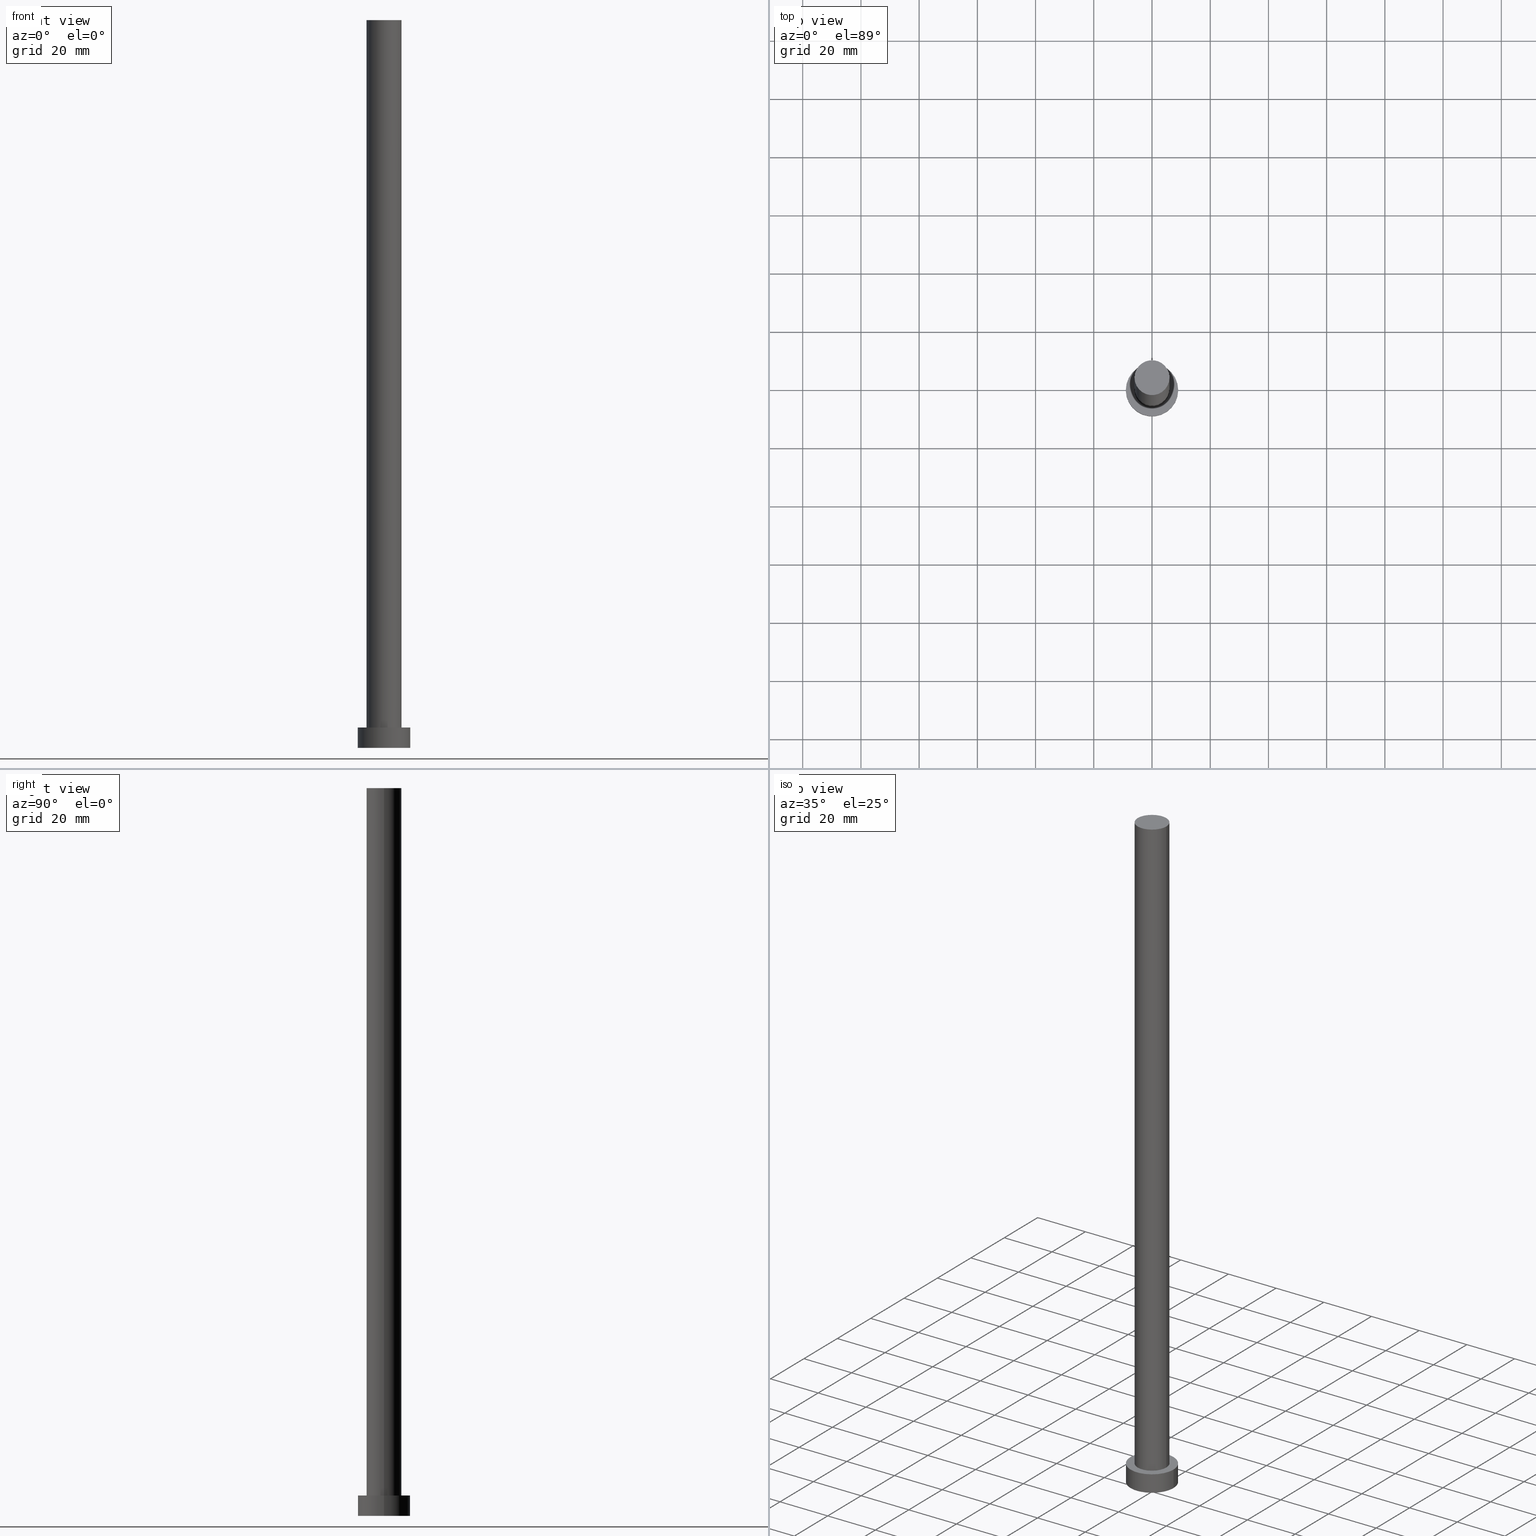
[diagram: canonical four-view strip — front | top / right | iso, engineering-drawing reading convention]
A machine part, canonical four-view strip (front | top / right | iso — engineering-drawing reading convention). The complete STEP part file that produces these views, byte-faithful:
ISO-10303-21;
HEADER;
FILE_DESCRIPTION (( 'STEP AP203' ),
    '1' );
FILE_NAME ('3dfd.STEP',
    '2023-02-13T08:56:39',
    ( '' ),
    ( '' ),
    'SwSTEP 2.0',
    'SolidWorks 2019',
    '' );
FILE_SCHEMA (( 'CONFIG_CONTROL_DESIGN' ));
ENDSEC;

DATA;
#1 = EDGE_LOOP ( 'NONE', ( #206, #64 ) ) ;
#2 = DIRECTION ( 'NONE',  ( 0.000000000000000000, 0.000000000000000000, 1.000000000000000000 ) ) ;
#3 = CARTESIAN_POINT ( 'NONE',  ( 0.000000000000000000, 0.000000000000000000, 250.0000000000000000 ) ) ;
#4 = CARTESIAN_POINT ( 'NONE',  ( -6.000000000000000888, 0.000000000000000000, 250.0000000000000000 ) ) ;
#5 = DIRECTION ( 'NONE',  ( 0.000000000000000000, 0.000000000000000000, 1.000000000000000000 ) ) ;
#6 = SECURITY_CLASSIFICATION ( '', '', #16 ) ;
#7 = DIRECTION ( 'NONE',  ( 0.000000000000000000, 0.000000000000000000, 1.000000000000000000 ) ) ;
#8 = EDGE_CURVE ( 'NONE', #193, #174, #25, .T. ) ;
#9 = EDGE_CURVE ( 'NONE', #174, #193, #170, .T. ) ;
#10 = PERSON_AND_ORGANIZATION ( #247, #176 ) ;
#11 = AXIS2_PLACEMENT_3D ( 'NONE', #117, #2, #190 ) ;
#12 = CIRCLE ( 'NONE', #32, 6.000000000000000888 ) ;
#13 =( NAMED_UNIT ( * ) PLANE_ANGLE_UNIT ( ) SI_UNIT ( $, .RADIAN. ) );
#14 = EDGE_LOOP ( 'NONE', ( #34, #130, #15, #134 ) ) ;
#15 = ORIENTED_EDGE ( 'NONE', *, *, #226, .T. ) ;
#16 = SECURITY_CLASSIFICATION_LEVEL ( 'unclassified' ) ;
#17 = CARTESIAN_POINT ( 'NONE',  ( 0.000000000000000000, 0.000000000000000000, 7.000000000000000000 ) ) ;
#18 = PERSON_AND_ORGANIZATION_ROLE ( 'design_supplier' ) ;
#19 = PRODUCT_DEFINITION ( 'NEZN�M�', '', #105, #204 ) ;
#20 = VERTEX_POINT ( 'NONE', #63 ) ;
#21 = DATE_AND_TIME ( #131, #224 ) ;
#23 = ADVANCED_FACE ( 'NONE', ( #156, #119 ), #97, .T. ) ;
#22 = ORIENTED_EDGE ( 'NONE', *, *, #9, .T. ) ;
#24 = FACE_OUTER_BOUND ( 'NONE', #1, .T. ) ;
#25 = CIRCLE ( 'NONE', #30, 9.000000000000000000 ) ;
#26 = LINE ( 'NONE', #70, #95 ) ;
#27 = DIRECTION ( 'NONE',  ( -0.000000000000000000, -0.000000000000000000, -1.000000000000000000 ) ) ;
#28 = CARTESIAN_POINT ( 'NONE',  ( 0.000000000000000000, 0.000000000000000000, 7.000000000000000000 ) ) ;
#29 = DIRECTION ( 'NONE',  ( -0.000000000000000000, -0.000000000000000000, -1.000000000000000000 ) ) ;
#30 = AXIS2_PLACEMENT_3D ( 'NONE', #136, #234, #209 ) ;
#31 = FACE_OUTER_BOUND ( 'NONE', #101, .T. ) ;
#32 = AXIS2_PLACEMENT_3D ( 'NONE', #87, #179, #49 ) ;
#33 = APPROVAL_ROLE ( '' ) ;
#34 = ORIENTED_EDGE ( 'NONE', *, *, #178, .F. ) ;
#35 = ORIENTED_EDGE ( 'NONE', *, *, #142, .F. ) ;
#36 = ORIENTED_EDGE ( 'NONE', *, *, #226, .F. ) ;
#37 = APPROVAL_DATE_TIME ( #252, #228 ) ;
#38 = ADVANCED_FACE ( 'NONE', ( #24 ), #177, .F. ) ;
#39 = CC_DESIGN_SECURITY_CLASSIFICATION ( #6, ( #105 ) ) ;
#40 = CARTESIAN_POINT ( 'NONE',  ( 0.000000000000000000, 0.000000000000000000, 250.0000000000000000 ) ) ;
#41 = DIRECTION ( 'NONE',  ( 1.000000000000000000, 0.000000000000000000, 0.000000000000000000 ) ) ;
#42 = ORIENTED_EDGE ( 'NONE', *, *, #100, .F. ) ;
#43 = EDGE_CURVE ( 'NONE', #152, #20, #48, .T. ) ;
#44 = AXIS2_PLACEMENT_3D ( 'NONE', #151, #50, #183 ) ;
#45 = CYLINDRICAL_SURFACE ( 'NONE', #122, 6.000000000000000888 ) ;
#46 = DIRECTION ( 'NONE',  ( -1.000000000000000000, 0.000000000000000000, 0.000000000000000000 ) ) ;
#47 = CYLINDRICAL_SURFACE ( 'NONE', #164, 9.000000000000000000 ) ;
#48 = CIRCLE ( 'NONE', #144, 9.000000000000000000 ) ;
#49 = DIRECTION ( 'NONE',  ( 1.000000000000000000, 0.000000000000000000, 0.000000000000000000 ) ) ;
#50 = DIRECTION ( 'NONE',  ( 0.000000000000000000, 0.000000000000000000, 1.000000000000000000 ) ) ;
#51 = CC_DESIGN_PERSON_AND_ORGANIZATION_ASSIGNMENT ( #10, #246, ( #243 ) ) ;
#52 = PERSON_AND_ORGANIZATION ( #247, #176 ) ;
#53 = MECHANICAL_CONTEXT ( 'NONE', #219, 'mechanical' ) ;
#54 = CIRCLE ( 'NONE', #112, 6.000000000000000888 ) ;
#55 = ORIENTED_EDGE ( 'NONE', *, *, #128, .F. ) ;
#56 = AXIS2_PLACEMENT_3D ( 'NONE', #115, #118, #191 ) ;
#57 = EDGE_LOOP ( 'NONE', ( #227, #55 ) ) ;
#58 = ORIENTED_EDGE ( 'NONE', *, *, #178, .T. ) ;
#59 = VERTEX_POINT ( 'NONE', #254 ) ;
#60 = PERSON_AND_ORGANIZATION_ROLE ( 'classification_officer' ) ;
#61 = VECTOR ( 'NONE', #102, 1000.000000000000000 ) ;
#62 = ORIENTED_EDGE ( 'NONE', *, *, #142, .T. ) ;
#63 = CARTESIAN_POINT ( 'NONE',  ( -9.000000000000000000, 0.000000000000000000, 0.000000000000000000 ) ) ;
#64 = ORIENTED_EDGE ( 'NONE', *, *, #43, .F. ) ;
#65 = CYLINDRICAL_SURFACE ( 'NONE', #218, 6.000000000000000888 ) ;
#66 = ADVANCED_FACE ( 'NONE', ( #235 ), #65, .T. ) ;
#67 = CARTESIAN_POINT ( 'NONE',  ( 6.000000000000000888, 7.347880794884120722E-16, 250.0000000000000000 ) ) ;
#68 = EDGE_CURVE ( 'NONE', #20, #152, #81, .T. ) ;
#69 = DIRECTION ( 'NONE',  ( -1.000000000000000000, 0.000000000000000000, 0.000000000000000000 ) ) ;
#70 = CARTESIAN_POINT ( 'NONE',  ( -9.000000000000000000, 0.000000000000000000, 7.000000000000000000 ) ) ;
#71 = CIRCLE ( 'NONE', #195, 6.000000000000000888 ) ;
#72 = APPROVAL_PERSON_ORGANIZATION ( #220, #223, #73 ) ;
#73 = APPROVAL_ROLE ( '' ) ;
#74 = VERTEX_POINT ( 'NONE', #188 ) ;
#75 = APPROVAL_ROLE ( '' ) ;
#76 = EDGE_LOOP ( 'NONE', ( #35, #160, #109, #186 ) ) ;
#77 = LOCAL_TIME ( 9, 56, 39.00000000000000000, #233 ) ;
#78 = CARTESIAN_POINT ( 'NONE',  ( 0.000000000000000000, 0.000000000000000000, 7.000000000000000000 ) ) ;
#79 = COORDINATED_UNIVERSAL_TIME_OFFSET ( 1, 0, .AHEAD. ) ;
#80 = ORIENTED_EDGE ( 'NONE', *, *, #43, .T. ) ;
#81 = CIRCLE ( 'NONE', #56, 9.000000000000000000 ) ;
#82 = CIRCLE ( 'NONE', #146, 6.000000000000000888 ) ;
#83 = DIRECTION ( 'NONE',  ( 0.000000000000000000, 0.000000000000000000, 1.000000000000000000 ) ) ;
#84 = CARTESIAN_POINT ( 'NONE',  ( 9.000000000000000000, 1.102182119232617714E-15, 7.000000000000000000 ) ) ;
#85 = CARTESIAN_POINT ( 'NONE',  ( 0.000000000000000000, 0.000000000000000000, 250.0000000000000000 ) ) ;
#86 = CC_DESIGN_APPROVAL ( #223, ( #19 ) ) ;
#87 = CARTESIAN_POINT ( 'NONE',  ( 0.000000000000000000, 0.000000000000000000, 7.000000000000000000 ) ) ;
#88 = DIRECTION ( 'NONE',  ( -0.000000000000000000, -0.000000000000000000, -1.000000000000000000 ) ) ;
#89 = CALENDAR_DATE ( 2023, 13, 2 ) ;
#90 = EDGE_CURVE ( 'NONE', #74, #192, #71, .T. ) ;
#91 = APPLICATION_PROTOCOL_DEFINITION ( 'international standard', 'config_control_design', 1994, #189 ) ;
#92 = DATE_AND_TIME ( #89, #240 ) ;
#93 = APPROVAL_PERSON_ORGANIZATION ( #232, #121, #75 ) ;
#94 = ORIENTED_EDGE ( 'NONE', *, *, #211, .T. ) ;
#95 = VECTOR ( 'NONE', #29, 1000.000000000000000 ) ;
#96 = AXIS2_PLACEMENT_3D ( 'NONE', #78, #197, #41 ) ;
#97 = PLANE ( 'NONE',  #239 ) ;
#98 = DATE_TIME_ROLE ( 'classification_date' ) ;
#99 = DIRECTION ( 'NONE',  ( -1.000000000000000000, 0.000000000000000000, 0.000000000000000000 ) ) ;
#100 = EDGE_CURVE ( 'NONE', #193, #20, #26, .T. ) ;
#101 = EDGE_LOOP ( 'NONE', ( #159, #62, #80, #42 ) ) ;
#102 = DIRECTION ( 'NONE',  ( -0.000000000000000000, -0.000000000000000000, -1.000000000000000000 ) ) ;
#103 = ORIENTED_EDGE ( 'NONE', *, *, #8, .T. ) ;
#104 = CC_DESIGN_PERSON_AND_ORGANIZATION_ASSIGNMENT ( #207, #60, ( #6 ) ) ;
#105 = PRODUCT_DEFINITION_FORMATION_WITH_SPECIFIED_SOURCE ( 'LIBOVOLN�', '', #243, .NOT_KNOWN. ) ;
#106 = LINE ( 'NONE', #67, #61 ) ;
#107 = DIRECTION ( 'NONE',  ( -0.000000000000000000, -0.000000000000000000, -1.000000000000000000 ) ) ;
#108 = AXIS2_PLACEMENT_3D ( 'NONE', #28, #88, #69 ) ;
#109 = ORIENTED_EDGE ( 'NONE', *, *, #100, .T. ) ;
#110 = CC_DESIGN_PERSON_AND_ORGANIZATION_ASSIGNMENT ( #229, #18, ( #105 ) ) ;
#111 = CALENDAR_DATE ( 2023, 13, 2 ) ;
#112 = AXIS2_PLACEMENT_3D ( 'NONE', #198, #7, #143 ) ;
#113 = PERSON_AND_ORGANIZATION_ROLE ( 'creator' ) ;
#114 = ADVANCED_FACE ( 'NONE', ( #141 ), #215, .T. ) ;
#115 = CARTESIAN_POINT ( 'NONE',  ( 0.000000000000000000, 0.000000000000000000, 0.000000000000000000 ) ) ;
#116 = DATE_AND_TIME ( #157, #77 ) ;
#117 = CARTESIAN_POINT ( 'NONE',  ( 0.000000000000000000, 0.000000000000000000, 0.000000000000000000 ) ) ;
#118 = DIRECTION ( 'NONE',  ( 0.000000000000000000, 0.000000000000000000, 1.000000000000000000 ) ) ;
#119 = FACE_OUTER_BOUND ( 'NONE', #138, .T. ) ;
#120 = CARTESIAN_POINT ( 'NONE',  ( 0.000000000000000000, 0.000000000000000000, 0.000000000000000000 ) ) ;
#121 = APPROVAL ( #154, 'NEUR�EN�' ) ;
#122 = AXIS2_PLACEMENT_3D ( 'NONE', #124, #107, #123 ) ;
#123 = DIRECTION ( 'NONE',  ( -1.000000000000000000, 0.000000000000000000, 0.000000000000000000 ) ) ;
#124 = CARTESIAN_POINT ( 'NONE',  ( 0.000000000000000000, 0.000000000000000000, 250.0000000000000000 ) ) ;
#125 = CARTESIAN_POINT ( 'NONE',  ( 9.000000000000000000, 1.102182119232617714E-15, 0.000000000000000000 ) ) ;
#126 = LINE ( 'NONE', #165, #184 ) ;
#127 = PERSON_AND_ORGANIZATION ( #247, #176 ) ;
#128 = EDGE_CURVE ( 'NONE', #192, #74, #12, .T. ) ;
#129 = UNCERTAINTY_MEASURE_WITH_UNIT (LENGTH_MEASURE( 1.000000000000000082E-05 ), #242, 'distance_accuracy_value', 'NONE');
#130 = ORIENTED_EDGE ( 'NONE', *, *, #211, .F. ) ;
#131 = CALENDAR_DATE ( 2023, 13, 2 ) ;
#132 = ADVANCED_FACE ( 'NONE', ( #217 ), #182, .T. ) ;
#133 = VERTEX_POINT ( 'NONE', #216 ) ;
#134 = ORIENTED_EDGE ( 'NONE', *, *, #90, .T. ) ;
#135 = MANIFOLD_SOLID_BREP ( 'P�idat vysunut�m3', #163 ) ;
#136 = CARTESIAN_POINT ( 'NONE',  ( 0.000000000000000000, 0.000000000000000000, 7.000000000000000000 ) ) ;
#137 = CARTESIAN_POINT ( 'NONE',  ( 0.000000000000000000, 0.000000000000000000, 7.000000000000000000 ) ) ;
#138 = EDGE_LOOP ( 'NONE', ( #103, #22 ) ) ;
#139 = CARTESIAN_POINT ( 'NONE',  ( 0.000000000000000000, 0.000000000000000000, 7.000000000000000000 ) ) ;
#140 = DIRECTION ( 'NONE',  ( 1.000000000000000000, 0.000000000000000000, 0.000000000000000000 ) ) ;
#141 = FACE_OUTER_BOUND ( 'NONE', #76, .T. ) ;
#142 = EDGE_CURVE ( 'NONE', #174, #152, #126, .T. ) ;
#143 = DIRECTION ( 'NONE',  ( 1.000000000000000000, 0.000000000000000000, 0.000000000000000000 ) ) ;
#144 = AXIS2_PLACEMENT_3D ( 'NONE', #120, #83, #161 ) ;
#145 = APPROVAL_DATE_TIME ( #245, #223 ) ;
#146 = AXIS2_PLACEMENT_3D ( 'NONE', #85, #238, #140 ) ;
#147 = CC_DESIGN_PERSON_AND_ORGANIZATION_ASSIGNMENT ( #231, #113, ( #105 ) ) ;
#148 = COORDINATED_UNIVERSAL_TIME_OFFSET ( 1, 0, .AHEAD. ) ;
#149 = APPLICATION_PROTOCOL_DEFINITION ( 'international standard', 'config_control_design', 1994, #219 ) ;
#150 = CC_DESIGN_APPROVAL ( #121, ( #6 ) ) ;
#151 = CARTESIAN_POINT ( 'NONE',  ( 0.000000000000000000, 0.000000000000000000, 0.000000000000000000 ) ) ;
#152 = VERTEX_POINT ( 'NONE', #125 ) ;
#153 = AXIS2_PLACEMENT_3D ( 'NONE', #3, #5, #194 ) ;
#154 = APPROVAL_STATUS ( 'not_yet_approved' ) ;
#155 = CC_DESIGN_DATE_AND_TIME_ASSIGNMENT ( #92, #185, ( #19 ) ) ;
#156 = FACE_BOUND ( 'NONE', #57, .T. ) ;
#157 = CALENDAR_DATE ( 2023, 13, 2 ) ;
#158 = ADVANCED_FACE ( 'NONE', ( #31 ), #47, .T. ) ;
#159 = ORIENTED_EDGE ( 'NONE', *, *, #9, .F. ) ;
#160 = ORIENTED_EDGE ( 'NONE', *, *, #8, .F. ) ;
#161 = DIRECTION ( 'NONE',  ( 1.000000000000000000, 0.000000000000000000, 0.000000000000000000 ) ) ;
#162 = DIRECTION ( 'NONE',  ( -0.000000000000000000, -0.000000000000000000, -1.000000000000000000 ) ) ;
#163 = CLOSED_SHELL ( 'NONE', ( #66, #158, #114, #23, #38, #221, #132 ) ) ;
#164 = AXIS2_PLACEMENT_3D ( 'NONE', #139, #236, #46 ) ;
#165 = CARTESIAN_POINT ( 'NONE',  ( 9.000000000000000000, 1.102182119232617714E-15, 7.000000000000000000 ) ) ;
#166 = PRODUCT_DEFINITION_SHAPE ( 'NONE', 'NONE',  #19 ) ;
#167 = CC_DESIGN_PERSON_AND_ORGANIZATION_ASSIGNMENT ( #52, #168, ( #19 ) ) ;
#168 = PERSON_AND_ORGANIZATION_ROLE ( 'creator' ) ;
#169 = APPROVAL_STATUS ( 'not_yet_approved' ) ;
#170 = CIRCLE ( 'NONE', #96, 9.000000000000000000 ) ;
#171 = ORIENTED_EDGE ( 'NONE', *, *, #250, .F. ) ;
#172 = DIRECTION ( 'NONE',  ( 0.000000000000000000, 0.000000000000000000, 1.000000000000000000 ) ) ;
#173 = APPROVAL_DATE_TIME ( #116, #121 ) ;
#174 = VERTEX_POINT ( 'NONE', #84 ) ;
#175 = COORDINATED_UNIVERSAL_TIME_OFFSET ( 1, 0, .AHEAD. ) ;
#176 = ORGANIZATION ( 'NEUR�EN�', 'NEUR�EN�', '' ) ;
#177 = PLANE ( 'NONE',  #11 ) ;
#178 = EDGE_CURVE ( 'NONE', #133, #192, #106, .T. ) ;
#179 = DIRECTION ( 'NONE',  ( 0.000000000000000000, 0.000000000000000000, 1.000000000000000000 ) ) ;
#180 = LINE ( 'NONE', #4, #196 ) ;
#181 = PRODUCT_RELATED_PRODUCT_CATEGORY ( 'detail', '', ( #243 ) ) ;
#182 = PLANE ( 'NONE',  #153 ) ;
#183 = DIRECTION ( 'NONE',  ( 1.000000000000000000, 0.000000000000000000, 0.000000000000000000 ) ) ;
#184 = VECTOR ( 'NONE', #162, 1000.000000000000000 ) ;
#185 = DATE_TIME_ROLE ( 'creation_date' ) ;
#186 = ORIENTED_EDGE ( 'NONE', *, *, #68, .T. ) ;
#187 = LOCAL_TIME ( 9, 56, 39.00000000000000000, #225 ) ;
#188 = CARTESIAN_POINT ( 'NONE',  ( -6.000000000000000888, 0.000000000000000000, 7.000000000000000000 ) ) ;
#189 = APPLICATION_CONTEXT ( 'configuration controlled 3d designs of mechanical parts and assemblies' ) ;
#190 = DIRECTION ( 'NONE',  ( 1.000000000000000000, 0.000000000000000000, -0.000000000000000000 ) ) ;
#191 = DIRECTION ( 'NONE',  ( 1.000000000000000000, 0.000000000000000000, 0.000000000000000000 ) ) ;
#192 = VERTEX_POINT ( 'NONE', #214 ) ;
#193 = VERTEX_POINT ( 'NONE', #241 ) ;
#194 = DIRECTION ( 'NONE',  ( 1.000000000000000000, 0.000000000000000000, -0.000000000000000000 ) ) ;
#195 = AXIS2_PLACEMENT_3D ( 'NONE', #17, #172, #200 ) ;
#196 = VECTOR ( 'NONE', #199, 1000.000000000000000 ) ;
#197 = DIRECTION ( 'NONE',  ( 0.000000000000000000, 0.000000000000000000, 1.000000000000000000 ) ) ;
#198 = CARTESIAN_POINT ( 'NONE',  ( 0.000000000000000000, 0.000000000000000000, 250.0000000000000000 ) ) ;
#199 = DIRECTION ( 'NONE',  ( -0.000000000000000000, -0.000000000000000000, -1.000000000000000000 ) ) ;
#200 = DIRECTION ( 'NONE',  ( 1.000000000000000000, 0.000000000000000000, 0.000000000000000000 ) ) ;
#201 = APPROVAL_PERSON_ORGANIZATION ( #127, #228, #33 ) ;
#202 = FACE_OUTER_BOUND ( 'NONE', #14, .T. ) ;
#203 =( GEOMETRIC_REPRESENTATION_CONTEXT ( 3 ) GLOBAL_UNCERTAINTY_ASSIGNED_CONTEXT ( ( #129 ) ) GLOBAL_UNIT_ASSIGNED_CONTEXT ( ( #242, #13, #249 ) ) REPRESENTATION_CONTEXT ( 'NONE', 'WORKASPACE' ) );
#204 = DESIGN_CONTEXT ( 'detailed design', #189, 'design' ) ;
#205 = ADVANCED_BREP_SHAPE_REPRESENTATION ( '3dfd', ( #135, #44 ), #203 ) ;
#206 = ORIENTED_EDGE ( 'NONE', *, *, #68, .F. ) ;
#207 = PERSON_AND_ORGANIZATION ( #247, #176 ) ;
#208 = SHAPE_DEFINITION_REPRESENTATION ( #166, #205 ) ;
#209 = DIRECTION ( 'NONE',  ( 1.000000000000000000, 0.000000000000000000, 0.000000000000000000 ) ) ;
#210 = DIRECTION ( 'NONE',  ( 0.000000000000000000, 0.000000000000000000, 1.000000000000000000 ) ) ;
#211 = EDGE_CURVE ( 'NONE', #59, #133, #54, .T. ) ;
#212 = ORIENTED_EDGE ( 'NONE', *, *, #128, .T. ) ;
#213 = DIRECTION ( 'NONE',  ( 1.000000000000000000, 0.000000000000000000, -0.000000000000000000 ) ) ;
#214 = CARTESIAN_POINT ( 'NONE',  ( 6.000000000000000888, 7.347880794884120722E-16, 7.000000000000000000 ) ) ;
#215 = CYLINDRICAL_SURFACE ( 'NONE', #108, 9.000000000000000000 ) ;
#216 = CARTESIAN_POINT ( 'NONE',  ( 6.000000000000000888, 7.347880794884120722E-16, 250.0000000000000000 ) ) ;
#217 = FACE_OUTER_BOUND ( 'NONE', #251, .T. ) ;
#218 = AXIS2_PLACEMENT_3D ( 'NONE', #40, #27, #99 ) ;
#219 = APPLICATION_CONTEXT ( 'configuration controlled 3d designs of mechanical parts and assemblies' ) ;
#220 = PERSON_AND_ORGANIZATION ( #247, #176 ) ;
#221 = ADVANCED_FACE ( 'NONE', ( #202 ), #45, .T. ) ;
#222 = APPROVAL_STATUS ( 'not_yet_approved' ) ;
#223 = APPROVAL ( #169, 'NEUR�EN�' ) ;
#224 = LOCAL_TIME ( 9, 56, 39.00000000000000000, #79 ) ;
#225 = COORDINATED_UNIVERSAL_TIME_OFFSET ( 1, 0, .AHEAD. ) ;
#226 = EDGE_CURVE ( 'NONE', #59, #74, #180, .T. ) ;
#227 = ORIENTED_EDGE ( 'NONE', *, *, #90, .F. ) ;
#228 = APPROVAL ( #222, 'NEUR�EN�' ) ;
#229 = PERSON_AND_ORGANIZATION ( #247, #176 ) ;
#230 = EDGE_LOOP ( 'NONE', ( #171, #58, #212, #36 ) ) ;
#231 = PERSON_AND_ORGANIZATION ( #247, #176 ) ;
#232 = PERSON_AND_ORGANIZATION ( #247, #176 ) ;
#233 = COORDINATED_UNIVERSAL_TIME_OFFSET ( 1, 0, .AHEAD. ) ;
#234 = DIRECTION ( 'NONE',  ( 0.000000000000000000, 0.000000000000000000, 1.000000000000000000 ) ) ;
#235 = FACE_OUTER_BOUND ( 'NONE', #230, .T. ) ;
#236 = DIRECTION ( 'NONE',  ( -0.000000000000000000, -0.000000000000000000, -1.000000000000000000 ) ) ;
#237 = CC_DESIGN_DATE_AND_TIME_ASSIGNMENT ( #21, #98, ( #6 ) ) ;
#238 = DIRECTION ( 'NONE',  ( 0.000000000000000000, 0.000000000000000000, 1.000000000000000000 ) ) ;
#239 = AXIS2_PLACEMENT_3D ( 'NONE', #137, #210, #213 ) ;
#240 = LOCAL_TIME ( 9, 56, 39.00000000000000000, #148 ) ;
#241 = CARTESIAN_POINT ( 'NONE',  ( -9.000000000000000000, 0.000000000000000000, 7.000000000000000000 ) ) ;
#242 =( LENGTH_UNIT ( ) NAMED_UNIT ( * ) SI_UNIT ( .MILLI., .METRE. ) );
#243 = PRODUCT ( '3dfd', '3dfd', '', ( #53 ) ) ;
#244 = CC_DESIGN_APPROVAL ( #228, ( #105 ) ) ;
#245 = DATE_AND_TIME ( #111, #187 ) ;
#246 = PERSON_AND_ORGANIZATION_ROLE ( 'design_owner' ) ;
#247 = PERSON ( 'NEUR�EN�', 'NEUR�EN�', 'NEUR�EN�', ('NEUR�EN�'), ('NEUR�EN�'), ('NEUR�EN�') ) ;
#248 = LOCAL_TIME ( 9, 56, 39.00000000000000000, #175 ) ;
#249 =( NAMED_UNIT ( * ) SI_UNIT ( $, .STERADIAN. ) SOLID_ANGLE_UNIT ( ) );
#250 = EDGE_CURVE ( 'NONE', #133, #59, #82, .T. ) ;
#251 = EDGE_LOOP ( 'NONE', ( #94, #253 ) ) ;
#252 = DATE_AND_TIME ( #255, #248 ) ;
#253 = ORIENTED_EDGE ( 'NONE', *, *, #250, .T. ) ;
#254 = CARTESIAN_POINT ( 'NONE',  ( -6.000000000000000888, 0.000000000000000000, 250.0000000000000000 ) ) ;
#255 = CALENDAR_DATE ( 2023, 13, 2 ) ;
ENDSEC;
END-ISO-10303-21;
